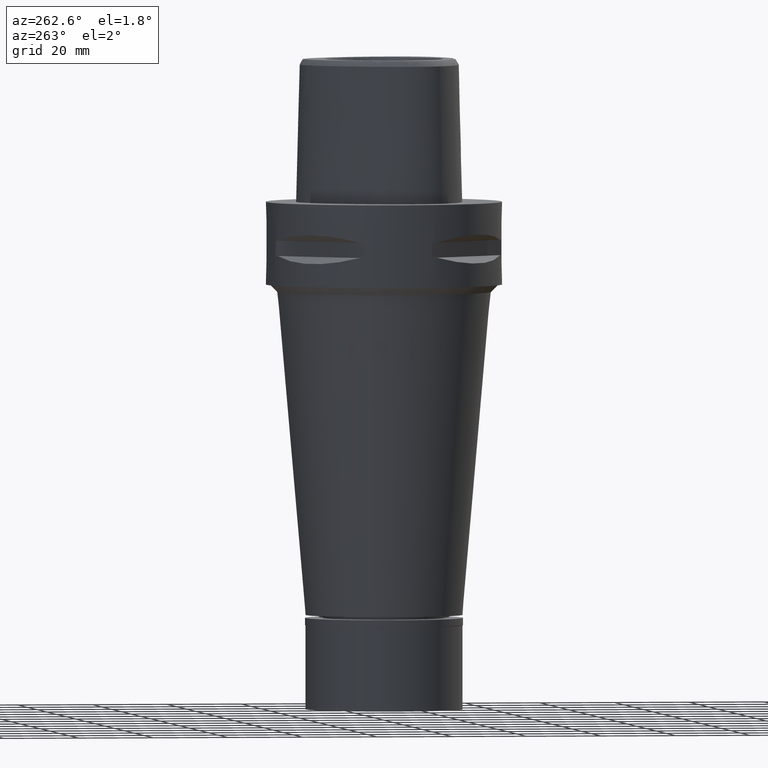
[diagram: clean part render]
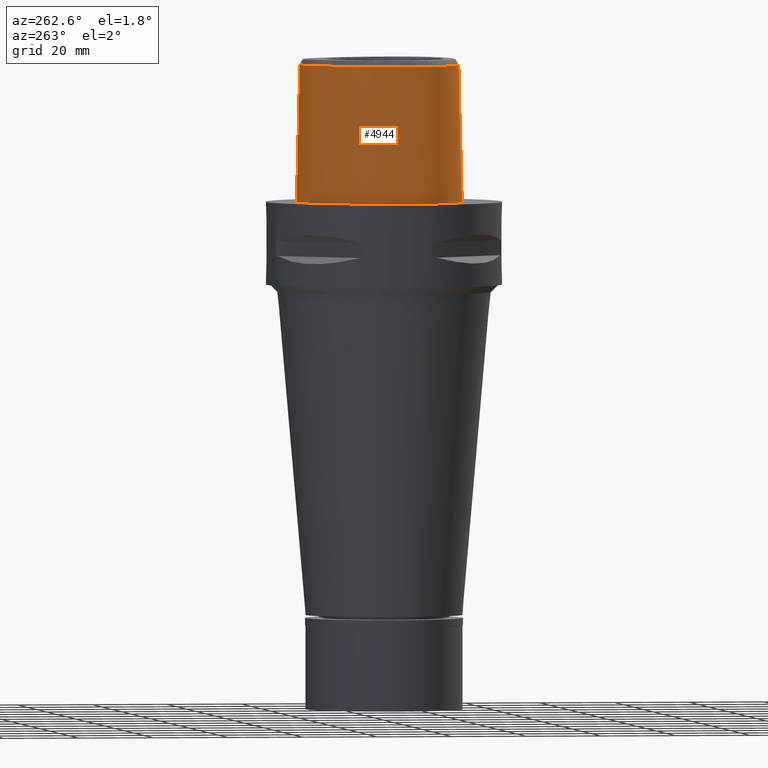
[diagram: same view with one face highlighted and labeled with its STEP entity id]
A machine part, auxiliary view. The second image highlights one B-rep face of the part: STEP entity #4944.
In plain terms, the highlighted face is a freeform B-spline surface patch.
Its self-contained STEP definition (entity closure, byte-faithful):
#5 = CARTESIAN_POINT ( 'NONE',  ( -3.637738201363999835, -19.56971413236999879, 36.52186244848000030 ) ) ;
#9 = CARTESIAN_POINT ( 'NONE',  ( -3.724287987559548707, -20.04899117660404073, 17.09139312267754462 ) ) ;
#53 = B_SPLINE_CURVE_WITH_KNOTS ( 'NONE', 3,
 ( #4585, #3376, #2598, #2220, #2966, #662, #1434, #3735, #2941, #3015, #1004, #3789, #3399, #1413, #4191, #2551, #4918, #4096, #4866, #1456, #2166, #3812, #1081 ),
 .UNSPECIFIED., .F., .F.,
 ( 4, 1, 1, 1, 1, 1, 1, 1, 1, 1, 1, 1, 1, 1, 1, 1, 1, 1, 1, 1, 4 ),
 ( 0.0000000000000000000, 0.03580973941722938314, 0.1234633994701893611, 0.1672902294965115666, 0.2111170595230442426, 0.2549438895495767521, 0.2768573045626853135, 0.2987707195758991241, 0.3206841345892179618, 0.3425975496024316613, 0.3864243796288590604, 0.4302512096552865151, 0.4740780396817139697, 0.5617316997346739615, 0.6493853597876338979, 0.7370390198404888071, 0.8246926798933436054, 0.8685195099198762536, 0.9123463399463140888, 0.9561731699727626932, 1.000000000000000000 ),
 .UNSPECIFIED. ) ;
#82 = ORIENTED_EDGE ( 'NONE', *, *, #458, .T. ) ;
#126 = CARTESIAN_POINT ( 'NONE',  ( -21.76083705123000200, -6.805026034427000603, 11.93048517439999934 ) ) ;
#148 = CARTESIAN_POINT ( 'NONE',  ( -2.887412005235022949, -20.23974548682598495, 12.66003157092551668 ) ) ;
#149 = CARTESIAN_POINT ( 'NONE',  ( -21.99640702061000042, -0.2778990154029999937, -0.7304378678203999886 ) ) ;
#177 = CARTESIAN_POINT ( 'NONE',  ( -0.5985508145604999664, 23.20171270121999640, 11.93048517439999934 ) ) ;
#188 = CARTESIAN_POINT ( 'NONE',  ( -21.55524825451094273, -8.996025388966710779, 2.320472702605890641E-07 ) ) ;
#198 = CARTESIAN_POINT ( 'NONE',  ( -1.678454493255254754, -20.33967188086239020, 11.81405957882813418 ) ) ;
#199 = CARTESIAN_POINT ( 'NONE',  ( -0.6149727129421999061, 23.51889465399999679, -0.7304378678203999886 ) ) ;
#251 = CARTESIAN_POINT ( 'NONE',  ( -21.13154856210000077, -6.714587030966000292, 37.25233125884000174 ) ) ;
#273 = CARTESIAN_POINT ( 'NONE',  ( -10.91263698701999907, -18.01320775583999634, 37.25233125884000174 ) ) ;
#282 = B_SPLINE_SURFACE_WITH_KNOTS ( 'NONE', 3, 3, ( 
 ( #3231, #4892, #4454, #1745 ),
 ( #3716, #3299, #1723, #1007 ),
 ( #199, #177, #1393, #2917 ),
 ( #2897, #4068, #4797, #2147 ),
 ( #4047, #588, #1769, #983 ),
 ( #560, #1696, #535, #3251 ),
 ( #4822, #2531, #2945, #1317 ),
 ( #2122, #2876, #2078, #2554 ),
 ( #2486, #4123, #4028, #2097 ),
 ( #3694, #3666, #611, #2169 ),
 ( #149, #4407, #1676, #1288 ),
 ( #2848, #3277, #2464, #516 ),
 ( #3646, #126, #4195, #251 ),
 ( #298, #2273, #665, #712 ),
 ( #4220, #3458, #4143, #1798 ),
 ( #1437, #3846, #4921, #3380 ),
 ( #1869, #4589, #5020, #690 ),
 ( #1030, #2992, #4531, #2245 ),
 ( #2576, #2224, #4613, #3045 ),
 ( #1084, #3792, #1417, #1054 ),
 ( #2969, #1489, #329, #273 ),
 ( #3432, #1844, #4943, #3816 ),
 ( #3019, #635, #3738, #3402 ),
 ( #2197, #4995, #1109, #3770 ),
 ( #2683, #1514, #1462, #2627 ) ),
 .UNSPECIFIED., .F., .F., .F.,
 ( 4, 1, 1, 1, 1, 1, 1, 1, 1, 1, 1, 1, 1, 1, 1, 1, 1, 1, 1, 1, 1, 1, 4 ),
 ( 4, 4 ),
 ( -0.01173777939045999967, 0.0000000000000000000, 0.04166666666736999758, 0.08333333333399001175, 0.1250000000005999923, 0.1666666666673000119, 0.2500000000004999889, 0.3333333333337000215, 0.4166666666670000296, 0.5000000000002999823, 0.5416666666668999985, 0.5833333333335000148, 0.6250000000001000311, 0.6458333333333999837, 0.6666666666667999674, 0.6875000000001000311, 0.7083333333333000637, 0.7500000000000000000, 0.7916666666667000474, 0.8333333333332000326, 0.9166666666664999852, 1.000000000000000000, 1.008985696609000060 ),
 ( -3.561957780812000202E-09, 1.000000181660000154 ),
 .UNSPECIFIED. ) ;
#283 = CARTESIAN_POINT ( 'NONE',  ( -3.704467467891559451, -20.04996865237281511, 17.13733399074462582 ) ) ;
#298 = CARTESIAN_POINT ( 'NONE',  ( -21.57281239714999899, -9.001246196531999644, -0.7304378678203999886 ) ) ;
#313 = CARTESIAN_POINT ( 'NONE',  ( -1.543048130380533900, -20.15993798682081817, 19.24453660913605546 ) ) ;
#315 = VERTEX_POINT ( 'NONE', #3663 ) ;
#329 = CARTESIAN_POINT ( 'NONE',  ( -11.02138175938999964, -18.31230442542000247, 24.59140821662000320 ) ) ;
#339 = CARTESIAN_POINT ( 'NONE',  ( -3.925407708632546289, -20.04099055260235573, 16.53138977182224423 ) ) ;
#350 = B_SPLINE_CURVE_WITH_KNOTS ( 'NONE', 3,
 ( #1328, #965, #4542, #4834, #1350, #2885, #3704, #648, #573, #4904, #1040, #2134, #188, #1755, #2494, #4491, #598, #544, #941, #2542, #4876, #995, #2587 ),
 .UNSPECIFIED., .F., .F.,
 ( 4, 1, 1, 1, 1, 1, 1, 1, 1, 1, 1, 1, 1, 1, 1, 1, 1, 1, 1, 1, 4 ),
 ( 0.0000000000000000000, 0.04166666666736999758, 0.08333333333399001175, 0.1250000000005999923, 0.1666666666673000119, 0.2500000000004999889, 0.3333333333337000215, 0.4166666666670000296, 0.5000000000002999823, 0.5416666666668999985, 0.5833333333335000148, 0.6250000000001000311, 0.6458333333333999837, 0.6666666666667999674, 0.6875000000001000311, 0.7083333333333000637, 0.7500000000000000000, 0.7916666666667000474, 0.8333333333332000326, 0.9166666666664999852, 1.000000000000000000 ),
 .UNSPECIFIED. ) ;
#365 = CARTESIAN_POINT ( 'NONE',  ( -4.027530768677417328, -20.06783249596208307, 14.99855479653707846 ) ) ;
#371 = ORIENTED_EDGE ( 'NONE', *, *, #1278, .F. ) ;
#391 = CARTESIAN_POINT ( 'NONE',  ( -2.696415149898506503, -20.10825975497923324, 18.52316981035199106 ) ) ;
#458 = EDGE_CURVE ( 'NONE', #3216, #315, #53, .T. ) ;
#515 = CARTESIAN_POINT ( 'NONE',  ( -2.421503357396272094, -20.28648737493427134, 12.24279215501540108 ) ) ;
#516 = CARTESIAN_POINT ( 'NONE',  ( -21.31039800922999916, -4.105938498915999268, 37.25233125884000174 ) ) ;
#534 = CARTESIAN_POINT ( 'NONE',  ( -2.945118222697385768, -20.23335776654019824, 12.71958560101069935 ) ) ;
#535 = CARTESIAN_POINT ( 'NONE',  ( -7.259695358641000240, 20.78233551174000127, 24.59140821662000320 ) ) ;
#544 = CARTESIAN_POINT ( 'NONE',  ( -16.95889172233483322, -15.67838866729274017, 2.320472702605890641E-07 ) ) ;
#560 = CARTESIAN_POINT ( 'NONE',  ( -7.580410842541000171, 21.33037926697999964, -0.7304378678203999886 ) ) ;
#573 = CARTESIAN_POINT ( 'NONE',  ( -20.74942740330822488, 4.657187498021925443, 2.320472702605890641E-07 ) ) ;
#588 = CARTESIAN_POINT ( 'NONE',  ( -4.987110641190001026, 22.24795274008999968, 11.93048517439999934 ) ) ;
#598 = CARTESIAN_POINT ( 'NONE',  ( -18.56841064719354151, -14.16937987880661964, 2.320472702605890641E-07 ) ) ;
#611 = CARTESIAN_POINT ( 'NONE',  ( -20.16779720075999904, 4.447573594828000410, 24.59140821662000320 ) ) ;
#634 = LINE ( 'NONE', #3737, #1792 ) ;
#635 = CARTESIAN_POINT ( 'NONE',  ( -1.870070488011999821, -20.39691384941000152, 11.93048517439999934 ) ) ;
#648 = CARTESIAN_POINT ( 'NONE',  ( -18.06826688021687488, 10.43171874708874114, 2.320472702605890641E-07 ) ) ;
#662 = CARTESIAN_POINT ( 'NONE',  ( -16.39211280191805287, -14.95758113318967730, 36.52186244848003582 ) ) ;
#665 = CARTESIAN_POINT ( 'NONE',  ( -20.96392231242000292, -8.820258258431001863, 24.59140821662000320 ) ) ;
#690 = CARTESIAN_POINT ( 'NONE',  ( -18.89485259514000148, -12.27684360027000032, 37.25233125884000174 ) ) ;
#697 = CARTESIAN_POINT ( 'NONE',  ( -3.732557508995409723, -20.04859144260191073, 17.07180291399404837 ) ) ;
#712 = CARTESIAN_POINT ( 'NONE',  ( -20.65947727005000090, -8.729764289380998576, 37.25233125884000174 ) ) ;
#728 = CARTESIAN_POINT ( 'NONE',  ( -3.862607746689350918, -20.10460055501470222, 14.28038032241867228 ) ) ;
#754 = CARTESIAN_POINT ( 'NONE',  ( -2.236225399043196838, -20.13170464962383122, 18.87669531694533731 ) ) ;
#761 = LINE ( 'NONE', #3835, #3595 ) ;
#778 = CARTESIAN_POINT ( 'NONE',  ( -3.744859968352741042, -20.12555785049271861, 13.95773689203802270 ) ) ;
#859 = CARTESIAN_POINT ( 'NONE',  ( 0.0000000000000000000, -20.18628283968999781, 19.55000000000000071 ) ) ;
#878 = CARTESIAN_POINT ( 'NONE',  ( -1.492522727687785933, -20.16161937968068329, 19.26502569008773236 ) ) ;
#908 = CARTESIAN_POINT ( 'NONE',  ( -3.377353639916971240, -20.18061854612786021, 13.26476903757087200 ) ) ;
#921 = B_SPLINE_CURVE_WITH_KNOTS ( 'NONE', 3,
 ( #2074, #1337, #2913, #1690 ),
 .UNSPECIFIED., .F., .F.,
 ( 4, 4 ),
 ( 0.0000000000000000000, 1.000000000000000000 ),
 .UNSPECIFIED. ) ;
#941 = CARTESIAN_POINT ( 'NONE',  ( -14.67337964131683492, -17.21410155744621662, 2.320472702605890641E-07 ) ) ;
#964 = CARTESIAN_POINT ( 'NONE',  ( -0.5036866637163958105, -20.18406862059044826, 19.52728785670091227 ) ) ;
#965 = CARTESIAN_POINT ( 'NONE',  ( -0.8548392418926302749, 23.47499999420164940, 2.320472702605890641E-07 ) ) ;
#983 = CARTESIAN_POINT ( 'NONE',  ( -4.750826087849000068, 21.65775772671999988, 37.25233125884000174 ) ) ;
#995 = CARTESIAN_POINT ( 'NONE',  ( -2.113823672719711944, -20.67499999420197909, 2.320472702605890641E-07 ) ) ;
#1004 = CARTESIAN_POINT ( 'NONE',  ( -20.67704215115530531, -8.734985316449586534, 36.52186244848003582 ) ) ;
#1007 = CARTESIAN_POINT ( 'NONE',  ( 0.4441906931233999822, 22.53710756497000034, 37.25233125884000174 ) ) ;
#1030 = CARTESIAN_POINT ( 'NONE',  ( -18.58171406929999847, -14.18198046875000173, -0.7304378678203999886 ) ) ;
#1040 = CARTESIAN_POINT ( 'NONE',  ( -22.24453907272616249, -4.100468750033838816, 2.320472702605890641E-07 ) ) ;
#1054 = CARTESIAN_POINT ( 'NONE',  ( -14.21104784820999889, -16.40237679572999951, 37.25233125884000174 ) ) ;
#1074 = EDGE_CURVE ( 'NONE', #4385, #3281, #4446, .T. ) ;
#1081 = CARTESIAN_POINT ( 'NONE',  ( -1.721529733222999964E-11, 22.56201468012000078, 36.52186680743999858 ) ) ;
#1084 = CARTESIAN_POINT ( 'NONE',  ( -14.68244497352999822, -17.23001773440000406, -0.7304378678203999886 ) ) ;
#1094 = CARTESIAN_POINT ( 'NONE',  ( -3.408875187705125320, -20.17633333109277416, 13.31312751153840246 ) ) ;
#1109 = CARTESIAN_POINT ( 'NONE',  ( 0.4479792473499999428, -20.05810136945999744, 24.59140821662000320 ) ) ;
#1118 = CARTESIAN_POINT ( 'NONE',  ( -1.517038990532323162, -20.16080850842839922, 19.25515252244234432 ) ) ;
#1146 = CARTESIAN_POINT ( 'NONE',  ( -2.360389010909461405, -20.12578017861218171, 18.79373387522309713 ) ) ;
#1169 = VERTEX_POINT ( 'NONE', #2847 ) ;
#1174 = CARTESIAN_POINT ( 'NONE',  ( -3.830499027157552749, -20.11062698623148393, 14.18153512544096628 ) ) ;
#1264 = CARTESIAN_POINT ( 'NONE',  ( -4.044848056823933113, -20.04744994059100094, 15.72117637690397274 ) ) ;
#1278 = EDGE_CURVE ( 'NONE', #3281, #3905, #634, .T. ) ;
#1288 = CARTESIAN_POINT ( 'NONE',  ( -21.05621879806999885, -0.4440252144504999721, 37.25233125884000174 ) ) ;
#1291 = CARTESIAN_POINT ( 'NONE',  ( -3.736722311398999796, -19.67781602443999844, 31.80000000000000071 ) ) ;
#1315 = CARTESIAN_POINT ( 'NONE',  ( -2.904838724128950833, -20.23782704190354664, 12.67778573503163386 ) ) ;
#1317 = CARTESIAN_POINT ( 'NONE',  ( -10.14358054977000201, 18.45723393165999937, 37.25233125884000174 ) ) ;
#1328 = CARTESIAN_POINT ( 'NONE',  ( 4.563147088830000295E-11, 23.47499999999000053, 5.517808432386999607E-14 ) ) ;
#1337 = CARTESIAN_POINT ( 'NONE',  ( 6.820948737962378572E-09, -19.98212988583611249, 27.71666688228260611 ) ) ;
#1349 = CARTESIAN_POINT ( 'NONE',  ( -0.2473412322726143697, -20.18628283969000492, 19.55000000000000071 ) ) ;
#1350 = CARTESIAN_POINT ( 'NONE',  ( -7.571159431412567642, 21.31457030747969483, 2.320472702605890641E-07 ) ) ;
#1392 = CARTESIAN_POINT ( 'NONE',  ( -1.975954942200878417, -20.32065689222469729, 11.96260358356314768 ) ) ;
#1393 = CARTESIAN_POINT ( 'NONE',  ( -0.5821289161788000266, 22.88453074843999602, 24.59140821662000320 ) ) ;
#1413 = CARTESIAN_POINT ( 'NONE',  ( -21.07430010673244425, -0.4408303445192637837, 36.52186244848003582 ) ) ;
#1417 = CARTESIAN_POINT ( 'NONE',  ( -14.36818022331000044, -16.67825710861999866, 24.59140821662000320 ) ) ;
#1434 = CARTESIAN_POINT ( 'NONE',  ( -17.90324032096467732, -13.53935111955233594, 36.52186244848003582 ) ) ;
#1437 = CARTESIAN_POINT ( 'NONE',  ( -20.36546124921000001, -11.75800453442999860, -0.7304378678203999886 ) ) ;
#1456 = CARTESIAN_POINT ( 'NONE',  ( -4.757642277158783628, 21.67478330407586284, 36.52186244848003582 ) ) ;
#1462 = CARTESIAN_POINT ( 'NONE',  ( 0.6718639802118999693, -20.05378874117000265, 24.59140821662000320 ) ) ;
#1474 = CARTESIAN_POINT ( 'NONE',  ( -1.656252726920341534, -20.15609978928733170, 19.19765142506812694 ) ) ;
#1489 = CARTESIAN_POINT ( 'NONE',  ( -11.13012653176999933, -18.61140109500999884, 11.93048517439999934 ) ) ;
#1500 = CARTESIAN_POINT ( 'NONE',  ( -3.740129524201636357, -20.04822853724977705, 17.05370687140990427 ) ) ;
#1514 = CARTESIAN_POINT ( 'NONE',  ( 0.6779535328294999941, -20.37023514787000167, 11.93048517439999934 ) ) ;
#1525 = CARTESIAN_POINT ( 'NONE',  ( -3.755562140673117444, -20.12374194796142390, 13.98397501487588102 ) ) ;
#1554 = CARTESIAN_POINT ( 'NONE',  ( -2.218923952806688416, -20.13252298611815405, 18.88809933006218955 ) ) ;
#1579 = CARTESIAN_POINT ( 'NONE',  ( -3.736722311398999796, -19.67781602443999844, 31.80000000000000071 ) ) ;
#1584 = CARTESIAN_POINT ( 'NONE',  ( -3.520475118944292436, -20.16064927175152732, 13.49656734865233076 ) ) ;
#1657 = ORIENTED_EDGE ( 'NONE', *, *, #4004, .T. ) ;
#1660 = EDGE_CURVE ( 'NONE', #1169, #4385, #921, .T. ) ;
#1676 = CARTESIAN_POINT ( 'NONE',  ( -21.36961487225000056, -0.3886498147679999793, 24.59140821662000320 ) ) ;
#1690 = CARTESIAN_POINT ( 'NONE',  ( 0.0000000000000000000, -20.18628283968999781, 19.55000000000000071 ) ) ;
#1694 = CARTESIAN_POINT ( 'NONE',  ( -1.812541018722973130, -20.33144879143464934, 11.87771303033514947 ) ) ;
#1696 = CARTESIAN_POINT ( 'NONE',  ( -7.420053100590999762, 21.05635738935999868, 11.93048517439999934 ) ) ;
#1721 = CARTESIAN_POINT ( 'NONE',  ( -3.215358272888235724, -20.20174660046940573, 13.03391498473859933 ) ) ;
#1723 = CARTESIAN_POINT ( 'NONE',  ( 0.4569144473917000071, 22.85341777225999849, 24.59140821662000320 ) ) ;
#1744 = CARTESIAN_POINT ( 'NONE',  ( -2.875757950341305769, -20.24102512592877900, 12.64823125461339437 ) ) ;
#1745 = CARTESIAN_POINT ( 'NONE',  ( 0.6658292786524000473, 22.52368252525999992, 37.25233125884000174 ) ) ;
#1755 = CARTESIAN_POINT ( 'NONE',  ( -20.93173251680899227, -10.60431640389433205, 2.320472702605890641E-07 ) ) ;
#1769 = CARTESIAN_POINT ( 'NONE',  ( -4.868968364518999614, 21.95285523340999845, 24.59140821662000320 ) ) ;
#1792 = VECTOR ( 'NONE', #1898, 1000.000000000000114 ) ;
#1798 = CARTESIAN_POINT ( 'NONE',  ( -20.07948473866999706, -10.22500055796000140, 37.25233125884000174 ) ) ;
#1844 = CARTESIAN_POINT ( 'NONE',  ( -6.288476566632999365, -20.00290564606000032, 11.93048517439999934 ) ) ;
#1852 = CARTESIAN_POINT ( 'NONE',  ( -3.466483550184903173, -20.16833646136365132, 13.40542637770943557 ) ) ;
#1855 = ORIENTED_EDGE ( 'NONE', *, *, #2460, .F. ) ;
#1869 = CARTESIAN_POINT ( 'NONE',  ( -19.66427015007999657, -12.83600704949999916, -0.7304378678203999886 ) ) ;
#1882 = CARTESIAN_POINT ( 'NONE',  ( -2.823299992936004976, -20.10104229143708920, 18.40378355436401492 ) ) ;
#1898 = DIRECTION ( 'NONE',  ( -5.771735082446829968E-13, -0.02499051295389925070, -0.9996876883618708298 ) ) ;
#1899 = CARTESIAN_POINT ( 'NONE',  ( 4.563147088830000295E-11, 23.47499999999000053, 5.517808432386999607E-14 ) ) ;
#1905 = ORIENTED_EDGE ( 'NONE', *, *, #1660, .F. ) ;
#1909 = CARTESIAN_POINT ( 'NONE',  ( -1.222079501492472575, -20.16967619644332288, 19.36182732690642183 ) ) ;
#1931 = CARTESIAN_POINT ( 'NONE',  ( -2.467128207654242900, -20.12044499745017845, 18.71456023906639032 ) ) ;
#1955 = CARTESIAN_POINT ( 'NONE',  ( -3.704239276368590961, -19.64128040965313460, 33.37395414949332917 ) ) ;
#1959 = B_SPLINE_CURVE_WITH_KNOTS ( 'NONE', 3,
 ( #5, #3903, #1955, #1579 ),
 .UNSPECIFIED., .F., .F.,
 ( 4, 4 ),
 ( 0.0000000000000000000, 1.000000000000000000 ),
 .UNSPECIFIED. ) ;
#1960 = CARTESIAN_POINT ( 'NONE',  ( -3.765489374949921864, -20.12204791086962530, 14.00864527312732477 ) ) ;
#2057 = CARTESIAN_POINT ( 'NONE',  ( 2.041042029990999821E-08, -19.88004246002000031, 31.80000004972000127 ) ) ;
#2074 = CARTESIAN_POINT ( 'NONE',  ( 2.041042029990999821E-08, -19.88004246002000031, 31.80000004972000127 ) ) ;
#2078 = CARTESIAN_POINT ( 'NONE',  ( -13.93560854301999896, 15.24203781219999954, 24.59140821662000320 ) ) ;
#2096 = CARTESIAN_POINT ( 'NONE',  ( -1.758544761681626323, -20.33485355119283255, 11.85123508312857865 ) ) ;
#2097 = CARTESIAN_POINT ( 'NONE',  ( -17.25769828306000164, 9.963736400685998973, 37.25233125884000174 ) ) ;
#2120 = CARTESIAN_POINT ( 'NONE',  ( -2.086814383356662805, -20.31269213283750830, 12.02647857452362778 ) ) ;
#2122 = CARTESIAN_POINT ( 'NONE',  ( -14.42198652363999933, 15.65278600556999855, -0.7304378678203999886 ) ) ;
#2134 = CARTESIAN_POINT ( 'NONE',  ( -22.05732873745247602, -6.847636717920724259, 2.320472702605890641E-07 ) ) ;
#2147 = CARTESIAN_POINT ( 'NONE',  ( -2.373090257707999751, 22.37624318448999716, 37.25233125884000174 ) ) ;
#2166 = CARTESIAN_POINT ( 'NONE',  ( -2.376843896515973054, 22.39422508473536411, 36.52186244848003582 ) ) ;
#2169 = CARTESIAN_POINT ( 'NONE',  ( -19.86834402434000069, 4.339653564443000100, 37.25233125884000174 ) ) ;
#2197 = CARTESIAN_POINT ( 'NONE',  ( 0.4560943670708999531, -20.69106768950000230, -0.7304378678203999886 ) ) ;
#2220 = CARTESIAN_POINT ( 'NONE',  ( -10.91891098965323792, -18.03046406390555489, 36.52186244848003582 ) ) ;
#2224 = CARTESIAN_POINT ( 'NONE',  ( -16.77374378722999992, -15.44292467640999966, 11.93048517439999934 ) ) ;
#2245 = CARTESIAN_POINT ( 'NONE',  ( -17.88993633952999929, -13.52674999982999893, 37.25233125884000174 ) ) ;
#2256 = CARTESIAN_POINT ( 'NONE',  ( -4.048193638326268662, -20.04945813672259902, 15.62509932612175056 ) ) ;
#2273 = CARTESIAN_POINT ( 'NONE',  ( -21.26836735479000140, -8.910752227481999910, 11.93048517439999934 ) ) ;
#2289 = CARTESIAN_POINT ( 'NONE',  ( -4.049663826248574239, -20.05088590020231010, 15.56119206774690866 ) ) ;
#2310 = CARTESIAN_POINT ( 'NONE',  ( -2.781497320433751863, -20.10345565782015953, 18.44409576488591895 ) ) ;
#2312 = ORIENTED_EDGE ( 'NONE', *, *, #1074, .F. ) ;
#2334 = CARTESIAN_POINT ( 'NONE',  ( -3.646271025383652997, -20.14180172674314662, 13.73229968810163371 ) ) ;
#2410 = ORIENTED_EDGE ( 'NONE', *, *, #4122, .T. ) ;
#2430 = CARTESIAN_POINT ( 'NONE',  ( -4.001055636211794386, -20.04208398455365625, 16.14154222857164811 ) ) ;
#2449 = VERTEX_POINT ( 'NONE', #2633 ) ;
#2460 = EDGE_CURVE ( 'NONE', #3216, #2449, #1959, .T. ) ;
#2462 = CARTESIAN_POINT ( 'NONE',  ( -1.638635025842260395, -20.34200884320524594, 11.79610711465529072 ) ) ;
#2464 = CARTESIAN_POINT ( 'NONE',  ( -21.62788386285000186, -4.104079499283999510, 24.59140821662000320 ) ) ;
#2465 = CARTESIAN_POINT ( 'NONE',  ( -1.251533273949783087, -19.88005341380020496, 31.80000012753032124 ) ) ;
#2485 = CARTESIAN_POINT ( 'NONE',  ( -3.294464282139363043, -20.19175818983861959, 13.14063372506666383 ) ) ;
#2486 = CARTESIAN_POINT ( 'NONE',  ( -18.08416038726999986, 10.44089487449999964, -0.7304378678203999886 ) ) ;
#2494 = CARTESIAN_POINT ( 'NONE',  ( -20.34961798053398141, -11.74885741896065028, 2.320472702605890641E-07 ) ) ;
#2514 = CARTESIAN_POINT ( 'NONE',  ( -0.8941136475711287668, -20.17742596329177474, 19.45229334933670273 ) ) ;
#2531 = CARTESIAN_POINT ( 'NONE',  ( -10.55288401071999971, 18.94467581797999856, 11.93048517439999934 ) ) ;
#2542 = CARTESIAN_POINT ( 'NONE',  ( -11.23259756527943409, -18.89324218202647998, 2.320472702605890641E-07 ) ) ;
#2551 = CARTESIAN_POINT ( 'NONE',  ( -17.27359245833870816, 9.972912913897991061, 36.52186244848003582 ) ) ;
#2554 = CARTESIAN_POINT ( 'NONE',  ( -13.69241955271999878, 15.03666371551000047, 37.25233125884000174 ) ) ;
#2576 = CARTESIAN_POINT ( 'NONE',  ( -16.97022731401999707, -15.69280483486000222, -0.7304378678203999886 ) ) ;
#2587 = CARTESIAN_POINT ( 'NONE',  ( -7.554100656235000957E-12, -20.67499999999999716, 5.806466418789999109E-14 ) ) ;
#2598 = CARTESIAN_POINT ( 'NONE',  ( -7.300578999877792796, -19.07170748891860157, 36.52186244848003582 ) ) ;
#2627 = CARTESIAN_POINT ( 'NONE',  ( 0.6657744275942999446, -19.73734233445999919, 37.25233125884000174 ) ) ;
#2633 = CARTESIAN_POINT ( 'NONE',  ( -3.736722311398999796, -19.67781602443999844, 31.80000000000000071 ) ) ;
#2637 = CARTESIAN_POINT ( 'NONE',  ( -2.187955111047391821, -20.13397228737175482, 18.90818030784005188 ) ) ;
#2661 = CARTESIAN_POINT ( 'NONE',  ( -4.019649019913690502, -20.04316019033999297, 16.01163126942445913 ) ) ;
#2683 = CARTESIAN_POINT ( 'NONE',  ( 0.6840430854471001298, -20.68668155457000069, -0.7304378678203999886 ) ) ;
#2696 = CARTESIAN_POINT ( 'NONE',  ( -3.649474620161942795, -20.05281468735705275, 17.25706831816536990 ) ) ;
#2713 = EDGE_CURVE ( 'NONE', #1169, #2449, #3618, .T. ) ;
#2727 = CARTESIAN_POINT ( 'NONE',  ( -2.857836109605274011, -20.09902107152586126, 18.36973246307367802 ) ) ;
#2825 = CARTESIAN_POINT ( 'NONE',  ( -4.049848995936168095, -20.05861656952082939, 15.25314035233473753 ) ) ;
#2847 = CARTESIAN_POINT ( 'NONE',  ( 2.041042029990999821E-08, -19.88004246002000031, 31.80000004972000127 ) ) ;
#2848 = CARTESIAN_POINT ( 'NONE',  ( -22.26285557010000105, -4.100361500021000083, -0.7304378678203999886 ) ) ;
#2876 = CARTESIAN_POINT ( 'NONE',  ( -14.17879753333000004, 15.44741190887999771, 11.93048517439999934 ) ) ;
#2885 = CARTESIAN_POINT ( 'NONE',  ( -10.74572890684456006, 19.17433593302928330, 2.320472702605890641E-07 ) ) ;
#2896 = CARTESIAN_POINT ( 'NONE',  ( -3.024127618930228856, -20.22444760030272093, 12.80466032897667716 ) ) ;
#2897 = CARTESIAN_POINT ( 'NONE',  ( -2.568271206746000068, 23.31126238854000121, -0.7304378678203999886 ) ) ;
#2913 = CARTESIAN_POINT ( 'NONE',  ( 6.840915345217080559E-09, -20.08420636276435900, 23.63333344114138157 ) ) ;
#2916 = CARTESIAN_POINT ( 'NONE',  ( -3.089131642921038701, -20.21685897408075405, 12.88004451868244793 ) ) ;
#2917 = CARTESIAN_POINT ( 'NONE',  ( -0.5657070177970999758, 22.56734879564999829, 37.25233125884000174 ) ) ;
#2941 = CARTESIAN_POINT ( 'NONE',  ( -19.55745547455938649, -11.29150218116064686, 36.52186244848003582 ) ) ;
#2945 = CARTESIAN_POINT ( 'NONE',  ( -10.34823228023999953, 18.70095487481999896, 24.59140821662000320 ) ) ;
#2966 = CARTESIAN_POINT ( 'NONE',  ( -14.22011356156484041, -16.41829364186250118, 36.52186244848003582 ) ) ;
#2969 = CARTESIAN_POINT ( 'NONE',  ( -11.23887130413999991, -18.91049776459999876, -0.7304378678203999886 ) ) ;
#2992 = CARTESIAN_POINT ( 'NONE',  ( -18.35112149270999993, -13.96357031244999902, 11.93048517439999934 ) ) ;
#3015 = CARTESIAN_POINT ( 'NONE',  ( -20.09619618741597336, -10.23243843868029934, 36.52186244848003582 ) ) ;
#3019 = CARTESIAN_POINT ( 'NONE',  ( -1.886862292480999903, -20.71358860382999723, -0.7304378678203999886 ) ) ;
#3030 = CARTESIAN_POINT ( 'NONE',  ( -3.686560471766090252, -20.05088322548402857, 17.17709135335211812 ) ) ;
#3045 = CARTESIAN_POINT ( 'NONE',  ( -16.38077673364000120, -14.94316435950999988, 37.25233125884000174 ) ) ;
#3054 = CARTESIAN_POINT ( 'NONE',  ( -4.050018014422889223, -20.05167593067615073, 15.52805627100565999 ) ) ;
#3075 = CARTESIAN_POINT ( 'NONE',  ( -3.081149392581266078, -20.08583124627751459, 18.14629112889928919 ) ) ;
#3110 = CARTESIAN_POINT ( 'NONE',  ( -2.841055161951133279, -20.10000556631501567, 18.38634273631047833 ) ) ;
#3138 = CARTESIAN_POINT ( 'NONE',  ( -2.852856104024934059, -20.09931387729061214, 18.37467926461877354 ) ) ;
#3156 = CARTESIAN_POINT ( 'NONE',  ( -2.503154198992763479, -19.81241979316355994, 31.80000012753032124 ) ) ;
#3170 = CARTESIAN_POINT ( 'NONE',  ( -9.433993878921999819E-13, -20.38876923348000147, 11.44999999999999929 ) ) ;
#3216 = VERTEX_POINT ( 'NONE', #3533 ) ;
#3231 = CARTESIAN_POINT ( 'NONE',  ( 0.7234356453968999734, 23.47140593139000231, -0.7304378678203999886 ) ) ;
#3251 = CARTESIAN_POINT ( 'NONE',  ( -7.099337616690999830, 20.50831363410999941, 37.25233125884000174 ) ) ;
#3276 = CARTESIAN_POINT ( 'NONE',  ( -1.572984596533334667, -20.34569619827904674, 11.76794029727457236 ) ) ;
#3277 = CARTESIAN_POINT ( 'NONE',  ( -21.94536971648000190, -4.102220499652999841, 11.93048517439999934 ) ) ;
#3281 = VERTEX_POINT ( 'NONE', #3170 ) ;
#3298 = CARTESIAN_POINT ( 'NONE',  ( -0.5047993661891336803, -20.38876923348000147, 11.44999999999999929 ) ) ;
#3299 = CARTESIAN_POINT ( 'NONE',  ( 0.4696382016601000076, 23.16972797954999663, 11.93048517439999934 ) ) ;
#3376 = CARTESIAN_POINT ( 'NONE',  ( -4.467522189396095023, -19.48130287050663156, 36.52186244848003582 ) ) ;
#3380 = CARTESIAN_POINT ( 'NONE',  ( -19.54161153976999898, -11.28235468111000017, 37.25233125884000174 ) ) ;
#3399 = CARTESIAN_POINT ( 'NONE',  ( -21.32871527670146961, -4.105831244393947976, 36.52186244848003582 ) ) ;
#3402 = CARTESIAN_POINT ( 'NONE',  ( -1.836486879074999967, -19.76356434058000389, 37.25233125884000174 ) ) ;
#3413 = CARTESIAN_POINT ( 'NONE',  ( -3.438474044886168812, -20.17226853620313776, 13.35950353148015957 ) ) ;
#3432 = CARTESIAN_POINT ( 'NONE',  ( -6.344715577533000861, -20.31619965432999919, -0.7304378678203999886 ) ) ;
#3444 = CARTESIAN_POINT ( 'NONE',  ( -2.004675599378036743, -20.14220382833444845, 19.01976680094072591 ) ) ;
#3458 = CARTESIAN_POINT ( 'NONE',  ( -20.65879042152999645, -10.48283616726000034, 11.93048517439999934 ) ) ;
#3468 = CARTESIAN_POINT ( 'NONE',  ( -3.788010122577050165, -20.11815763408465330, 14.06624340820799546 ) ) ;
#3491 = CARTESIAN_POINT ( 'NONE',  ( -3.952964639633003596, -20.08622609015964144, 14.60890045225522726 ) ) ;
#3523 = CARTESIAN_POINT ( 'NONE',  ( -3.553766164803828786, -20.15576042543258239, 13.55638603583300039 ) ) ;
#3533 = CARTESIAN_POINT ( 'NONE',  ( -3.637738201363999835, -19.56971413236999879, 36.52186244848000030 ) ) ;
#3595 = VECTOR ( 'NONE', #5036, 999.9999999999998863 ) ;
#3618 = B_SPLINE_CURVE_WITH_KNOTS ( 'NONE', 3,
 ( #2057, #2465, #3156, #1291 ),
 .UNSPECIFIED., .F., .F.,
 ( 4, 4 ),
 ( 0.0000000000000000000, 1.000000000000000000 ),
 .UNSPECIFIED. ) ;
#3645 = CARTESIAN_POINT ( 'NONE',  ( -9.433993878921999819E-13, -20.38876923348000147, 11.44999999999999929 ) ) ;
#3646 = CARTESIAN_POINT ( 'NONE',  ( -22.07548129579000218, -6.850245536157000714, -0.7304378678203999886 ) ) ;
#3663 = CARTESIAN_POINT ( 'NONE',  ( -1.721529733222999964E-11, 22.56201468012000078, 36.52186680743999858 ) ) ;
#3664 = CARTESIAN_POINT ( 'NONE',  ( -2.647727988110749830, -20.26593689667658182, 12.42012271608913032 ) ) ;
#3666 = CARTESIAN_POINT ( 'NONE',  ( -20.46725037717000006, 4.555493625213999920, 11.93048517439999934 ) ) ;
#3693 = CARTESIAN_POINT ( 'NONE',  ( -2.870809693610398394, -20.24156730632853751, 12.64324605247006694 ) ) ;
#3694 = CARTESIAN_POINT ( 'NONE',  ( -20.76670355359000197, 4.663413655599000229, -0.7304378678203999886 ) ) ;
#3704 = CARTESIAN_POINT ( 'NONE',  ( -14.40795638512652488, 15.64093749622768037, 2.320472702605890641E-07 ) ) ;
#3715 = CARTESIAN_POINT ( 'NONE',  ( -3.388781880796565726, -20.17907268769699769, 13.28211842279016963 ) ) ;
#3716 = CARTESIAN_POINT ( 'NONE',  ( 0.4823619559283999769, 23.48603818683999833, -0.7304378678203999886 ) ) ;
#3735 = CARTESIAN_POINT ( 'NONE',  ( -18.90964971338448564, -12.28759719904511272, 36.52186244848003582 ) ) ;
#3737 = CARTESIAN_POINT ( 'NONE',  ( -9.433993878921999819E-13, -20.38876923348000147, 11.44999999999999929 ) ) ;
#3738 = CARTESIAN_POINT ( 'NONE',  ( -1.853278683543999827, -20.08023909499999959, 24.59140821662000320 ) ) ;
#3770 = CARTESIAN_POINT ( 'NONE',  ( 0.4439216874896000364, -19.74161820944000212, 37.25233125884000174 ) ) ;
#3789 = CARTESIAN_POINT ( 'NONE',  ( -21.14970188364251769, -6.717195958887317353, 36.52186244848003582 ) ) ;
#3792 = CARTESIAN_POINT ( 'NONE',  ( -14.52531259842000111, -16.95413742151000136, 11.93048517439999934 ) ) ;
#3812 = CARTESIAN_POINT ( 'NONE',  ( -0.7901461696973479665, 22.56201478746072198, 36.52186244848003582 ) ) ;
#3816 = CARTESIAN_POINT ( 'NONE',  ( -6.175998544832999926, -19.37631762952999637, 37.25233125884000174 ) ) ;
#3827 = CARTESIAN_POINT ( 'NONE',  ( -3.921269265871360155, -20.09311890564809389, 14.47775228273900439 ) ) ;
#3835 = CARTESIAN_POINT ( 'NONE',  ( -1.721529733222999964E-11, 22.56201468012000078, 36.52186680743999858 ) ) ;
#3846 = CARTESIAN_POINT ( 'NONE',  ( -20.09084467939999996, -11.59945458332999912, 11.93048517439999934 ) ) ;
#3859 = CARTESIAN_POINT ( 'NONE',  ( -1.944872162919951464, -20.14473830020723710, 19.05307826099487301 ) ) ;
#3881 = CARTESIAN_POINT ( 'NONE',  ( -3.474550157063373668, -20.06258684786147839, 17.58509941784221198 ) ) ;
#3903 = CARTESIAN_POINT ( 'NONE',  ( -3.671249123513567802, -19.60525173594972514, 34.94790829898666829 ) ) ;
#3905 = VERTEX_POINT ( 'NONE', #4524 ) ;
#3906 = CARTESIAN_POINT ( 'NONE',  ( -2.621021505587192824, -20.11233874864635851, 18.58822781674975033 ) ) ;
#4004 = EDGE_CURVE ( 'NONE', #315, #4985, #761, .T. ) ;
#4022 = ORIENTED_EDGE ( 'NONE', *, *, #2713, .T. ) ;
#4028 = CARTESIAN_POINT ( 'NONE',  ( -17.53318565113000105, 10.12278922528999914, 24.59140821662000320 ) ) ;
#4046 = CARTESIAN_POINT ( 'NONE',  ( -1.592612062467941847, -20.34460894491104455, 11.77623291199329181 ) ) ;
#4047 = CARTESIAN_POINT ( 'NONE',  ( -5.105252917859999684, 22.54305024678000180, -0.7304378678203999886 ) ) ;
#4068 = CARTESIAN_POINT ( 'NONE',  ( -2.503210890400000110, 22.99958932053000282, 11.93048517439999934 ) ) ;
#4096 = CARTESIAN_POINT ( 'NONE',  ( -10.15538788053065566, 18.47129535094326869, 36.52186244848003582 ) ) ;
#4098 = FACE_OUTER_BOUND ( 'NONE', #4724, .T. ) ;
#4122 = EDGE_CURVE ( 'NONE', #4985, #3905, #350, .T. ) ;
#4123 = CARTESIAN_POINT ( 'NONE',  ( -17.80867301920000045, 10.28184204989999806, 11.93048517439999934 ) ) ;
#4143 = CARTESIAN_POINT ( 'NONE',  ( -20.36913758009999853, -10.35391836261000087, 24.59140821662000320 ) ) ;
#4191 = CARTESIAN_POINT ( 'NONE',  ( -19.88562090097912360, 4.345879983792242385, 36.52186244848003582 ) ) ;
#4195 = CARTESIAN_POINT ( 'NONE',  ( -21.44619280665999739, -6.759806532696999604, 24.59140821662000320 ) ) ;
#4205 = CARTESIAN_POINT ( 'NONE',  ( -1.435263460290661985, -20.16346600381252685, 19.28743623777367588 ) ) ;
#4220 = CARTESIAN_POINT ( 'NONE',  ( -20.94844326296999881, -10.61175397190999981, -0.7304378678203999886 ) ) ;
#4232 = CARTESIAN_POINT ( 'NONE',  ( -2.095753548405625999, -20.13818364214462164, 18.96577014706425501 ) ) ;
#4263 = CARTESIAN_POINT ( 'NONE',  ( -2.141634863655994980, -20.13611892945455750, 18.93776449056860400 ) ) ;
#4287 = CARTESIAN_POINT ( 'NONE',  ( -3.748882549353759419, -20.12487725615873302, 13.96753193210146549 ) ) ;
#4381 = CARTESIAN_POINT ( 'NONE',  ( -3.698122373791105311, -20.13343971464007609, 13.84482020407636149 ) ) ;
#4385 = VERTEX_POINT ( 'NONE', #859 ) ;
#4407 = CARTESIAN_POINT ( 'NONE',  ( -21.68301094642999871, -0.3332744150855000420, 11.93048517439999934 ) ) ;
#4446 = B_SPLINE_CURVE_WITH_KNOTS ( 'NONE', 3,
 ( #4857, #1349, #964, #2514, #4875, #1909, #4979, #4205, #878, #1118, #4649, #313, #1474, #5006, #3859, #3444, #4232, #4263, #2637, #1554, #754, #1146, #1931, #3906, #391, #2310, #1882, #3110, #3138, #2727, #3075, #4772, #3881, #4626, #5030, #2696, #3030, #283, #9, #697, #5055, #1500, #4599, #339, #2430, #2661, #4681, #1264, #2256, #2289, #3054, #2825, #365, #3491, #3827, #728, #1174, #3468, #1960, #1525, #4287, #778, #4381, #2334, #3523, #1584, #1852, #3413, #1094, #3715, #908, #2485, #1721, #2916, #2896, #534, #1315, #148, #1744, #3693, #3664, #515, #2120, #1392, #1694, #2096, #198, #2462, #4046, #3276, #4477, #4453, #4846, #3298, #3645 ),
 .UNSPECIFIED., .F., .F.,
 ( 4, 2, 2, 1, 1, 1, 2, 2, 2, 2, 1, 2, 2, 2, 1, 1, 1, 2, 2, 2, 2, 2, 1, 1, 2, 2, 2, 2, 1, 2, 2, 2, 2, 1, 1, 1, 2, 2, 2, 2, 1, 2, 2, 2, 1, 1, 1, 2, 2, 2, 2, 2, 1, 1, 2, 2, 4 ),
 ( 0.0000000000000000000, 0.06249999999998973044, 0.09374999999998465117, 0.1093749999999822364, 0.1171874999999808625, 0.1210937499999801825, 0.1230468749999796829, 0.1249999999999791833, 0.1562499999999720224, 0.1718749999999684419, 0.1796874999999668043, 0.1835937499999660549, 0.1874999999999653055, 0.2187499999999589495, 0.2343749999999558131, 0.2421874999999542588, 0.2460937499999535372, 0.2480468749999534539, 0.2499999999999533429, 0.3124999999999434896, 0.3437499999999388822, 0.3593749999999369393, 0.3671874999999364397, 0.3710937499999366618, 0.3730468749999367728, 0.3749999999999368838, 0.4374999999999434341, 0.4687499999999462652, 0.4843749999999477085, 0.4921874999999484301, 0.4999999999999491518, 0.5624999999999558131, 0.5937499999999593658, 0.6093749999999613642, 0.6171874999999623634, 0.6210937499999628075, 0.6230468749999630296, 0.6249999999999632516, 0.6562499999999682476, 0.6718749999999705791, 0.6796874999999716893, 0.6835937499999722444, 0.6874999999999727995, 0.7187499999999756861, 0.7343749999999771294, 0.7421874999999777955, 0.7460937499999780176, 0.7480468749999781286, 0.7499999999999782396, 0.8124999999999827915, 0.8437499999999852340, 0.8593749999999864553, 0.8671874999999871214, 0.8710937499999874545, 0.8730468749999876765, 0.8749999999999878986, 1.000000000000000000 ),
 .UNSPECIFIED. ) ;
#4453 = CARTESIAN_POINT ( 'NONE',  ( -1.554881956805381105, -20.34669101430224813, 11.76035872671696580 ) ) ;
#4454 = CARTESIAN_POINT ( 'NONE',  ( 0.6850314009005999960, 22.83959032729999805, 24.59140821662000320 ) ) ;
#4477 = CARTESIAN_POINT ( 'NONE',  ( -1.559921522259176685, -20.34641501698339638, 11.76246137009518833 ) ) ;
#4491 = CARTESIAN_POINT ( 'NONE',  ( -19.64947365393844692, -12.82525390282949296, 2.320472702605890641E-07 ) ) ;
#4524 = CARTESIAN_POINT ( 'NONE',  ( -7.554100656235000957E-12, -20.67499999999999716, 5.806466418789999109E-14 ) ) ;
#4531 = CARTESIAN_POINT ( 'NONE',  ( -18.12052891612000138, -13.74516015613999897, 24.59140821662000320 ) ) ;
#4542 = CARTESIAN_POINT ( 'NONE',  ( -2.564517725764392964, 23.29328124428865721, 2.320472702605890641E-07 ) ) ;
#4585 = CARTESIAN_POINT ( 'NONE',  ( -3.637738201363999835, -19.56971413236999879, 36.52186244848000030 ) ) ;
#4589 = CARTESIAN_POINT ( 'NONE',  ( -19.40779763177000206, -12.64961923309000191, 11.93048517439999934 ) ) ;
#4599 = CARTESIAN_POINT ( 'NONE',  ( -3.848403410399269919, -20.04310851184510156, 16.79149714040343966 ) ) ;
#4613 = CARTESIAN_POINT ( 'NONE',  ( -16.57726026043000189, -15.19304451796000066, 24.59140821662000320 ) ) ;
#4626 = CARTESIAN_POINT ( 'NONE',  ( -3.538328569009117963, -20.05892019842419671, 17.47427695038242490 ) ) ;
#4649 = CARTESIAN_POINT ( 'NONE',  ( -1.533377486154679836, -20.16026360294687336, 19.24851053760749409 ) ) ;
#4681 = CARTESIAN_POINT ( 'NONE',  ( -4.038031914720692228, -20.04584209172336529, 15.81781984752944581 ) ) ;
#4724 = EDGE_LOOP ( 'NONE', ( #371, #2312, #1905, #4022, #1855, #82, #1657, #2410 ) ) ;
#4772 = CARTESIAN_POINT ( 'NONE',  ( -3.258446753586495603, -20.07522384658319581, 17.91983021284174882 ) ) ;
#4797 = CARTESIAN_POINT ( 'NONE',  ( -2.438150574054000153, 22.68791625250999999, 24.59140821662000320 ) ) ;
#4822 = CARTESIAN_POINT ( 'NONE',  ( -10.75753574119999989, 19.18839676114000170, -0.7304378678203999886 ) ) ;
#4834 = CARTESIAN_POINT ( 'NONE',  ( -5.098437015117591287, 22.52602538521632169, 2.320472702605890641E-07 ) ) ;
#4846 = CARTESIAN_POINT ( 'NONE',  ( -1.035503055405978312, -20.37488775911208094, 11.54570873351903160 ) ) ;
#4857 = CARTESIAN_POINT ( 'NONE',  ( 0.0000000000000000000, -20.18628283968999781, 19.55000000000000071 ) ) ;
#4866 = CARTESIAN_POINT ( 'NONE',  ( -7.108589416785165760, 20.52412325828174033, 36.52186244848003582 ) ) ;
#4875 = CARTESIAN_POINT ( 'NONE',  ( -1.025211814377291475, -20.17465818941732891, 19.42048404905546022 ) ) ;
#4876 = CARTESIAN_POINT ( 'NONE',  ( -6.341471018181030317, -20.29812499426476435, 2.320472702605890641E-07 ) ) ;
#4892 = CARTESIAN_POINT ( 'NONE',  ( 0.7042335231487000247, 23.15549812933999974, 11.93048517439999934 ) ) ;
#4904 = CARTESIAN_POINT ( 'NONE',  ( -21.97832647212497292, -0.2810937510149783547, 2.320472702605890641E-07 ) ) ;
#4918 = CARTESIAN_POINT ( 'NONE',  ( -13.70645028111514385, 15.04851272301028153, 36.52186244848003582 ) ) ;
#4921 = CARTESIAN_POINT ( 'NONE',  ( -19.81622810957999903, -11.44090463222000054, 24.59140821662000320 ) ) ;
#4943 = CARTESIAN_POINT ( 'NONE',  ( -6.232237555733000534, -19.68961163779999879, 24.59140821662000320 ) ) ;
#4944 = ADVANCED_FACE ( 'NONE', ( #4098 ), #282, .T. ) ;
#4979 = CARTESIAN_POINT ( 'NONE',  ( -1.320565687271252786, -20.16697761691574442, 19.32976498246145525 ) ) ;
#4985 = VERTEX_POINT ( 'NONE', #1899 ) ;
#4995 = CARTESIAN_POINT ( 'NONE',  ( 0.4520368072104999912, -20.37458452947999987, 11.93048517439999934 ) ) ;
#5006 = CARTESIAN_POINT ( 'NONE',  ( -1.768917262159672710, -20.15190475906431544, 19.14568281053833942 ) ) ;
#5020 = CARTESIAN_POINT ( 'NONE',  ( -19.15132511344999955, -12.46323141667999934, 24.59140821662000320 ) ) ;
#5030 = CARTESIAN_POINT ( 'NONE',  ( -3.623054736483409144, -20.05423874947321039, 17.31100359226989127 ) ) ;
#5036 = DIRECTION ( 'NONE',  ( 1.720260926822959568E-12, 0.02499051290962944413, -0.9996876883629776112 ) ) ;
#5055 = CARTESIAN_POINT ( 'NONE',  ( -3.738021026999629459, -20.04832921641926546, 17.05876513949563034 ) ) ;